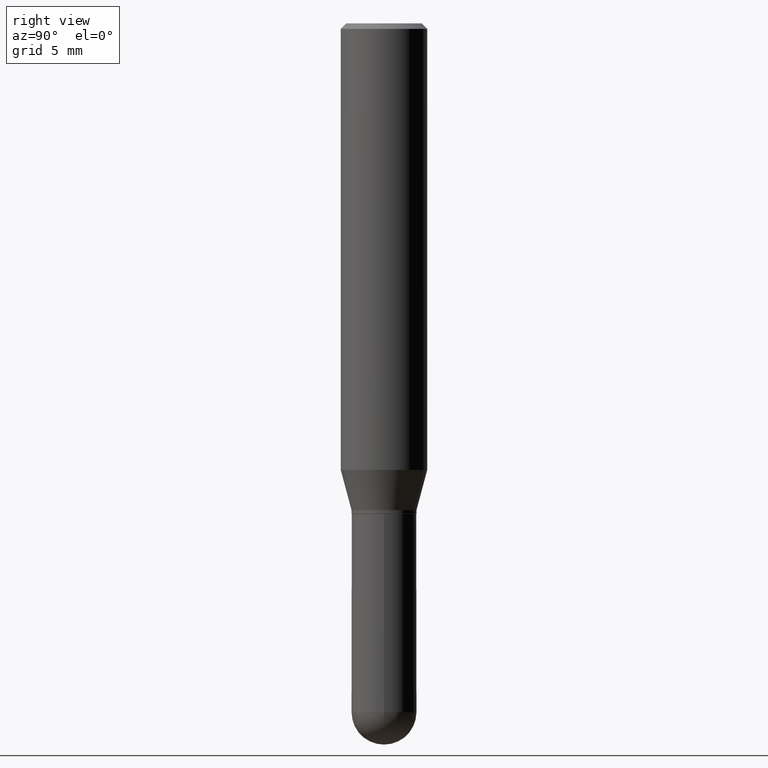
[diagram: clean part render]
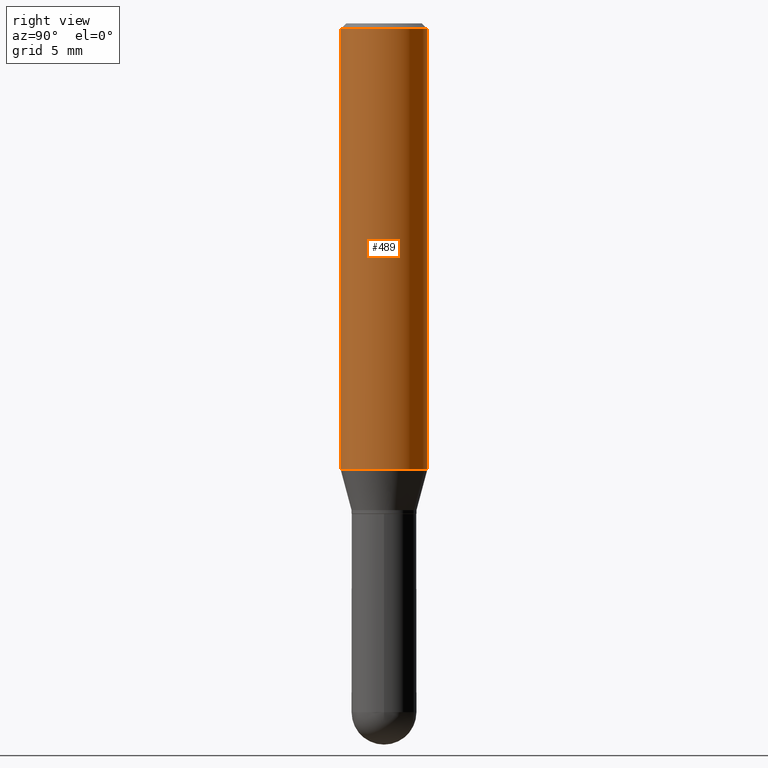
[diagram: same view with one face highlighted and labeled with its STEP entity id]
A machine part, right view. The second image highlights one B-rep face of the part: STEP entity #489.
In plain terms, the highlighted cylindrical surface (partial cylindrical patch) has radius 2.9997 mm, axis along (-0, 0, 1).
Its self-contained STEP definition (entity closure, byte-faithful):
#3 = CARTESIAN_POINT ( 'NONE',  ( -8.246878922347479668E-16, -0.1180999999999999966, 4.122716881796092250E-16 ) ) ;
#33 = DIRECTION ( 'NONE',  ( -2.445896049608158074E-29, 3.490869501944193410E-15, 1.000000000000000000 ) ) ;
#36 = EDGE_CURVE ( 'NONE', #424, #367, #126, .T. ) ;
#39 = DIRECTION ( 'NONE',  ( -2.445896049608158354E-29, 3.490869501944193805E-15, 1.000000000000000000 ) ) ;
#41 = DIRECTION ( 'NONE',  ( -2.445896049608158074E-29, 3.490869501944193410E-15, 1.000000000000000000 ) ) ;
#47 = LINE ( 'NONE', #3, #472 ) ;
#52 = VERTEX_POINT ( 'NONE', #201 ) ;
#62 = EDGE_CURVE ( 'NONE', #52, #343, #47, .T. ) ;
#71 = CARTESIAN_POINT ( 'NONE',  ( 8.391509709327078780E-16, 0.1180999999999957362, -1.218504501176718824 ) ) ;
#83 = AXIS2_PLACEMENT_3D ( 'NONE', #309, #33, #271 ) ;
#125 = FACE_OUTER_BOUND ( 'NONE', #148, .T. ) ;
#126 = LINE ( 'NONE', #324, #272 ) ;
#148 = EDGE_LOOP ( 'NONE', ( #180, #422, #306, #465 ) ) ;
#180 = ORIENTED_EDGE ( 'NONE', *, *, #414, .T. ) ;
#201 = CARTESIAN_POINT ( 'NONE',  ( -8.246878922347182859E-16, -0.1181000000000042710, -1.218504501176718158 ) ) ;
#206 = CARTESIAN_POINT ( 'NONE',  ( 0.000000000000000000, 0.000000000000000000, 0.000000000000000000 ) ) ;
#234 = AXIS2_PLACEMENT_3D ( 'NONE', #510, #41, #502 ) ;
#253 = CARTESIAN_POINT ( 'NONE',  ( 8.391509709327082724E-16, 0.1180999999999999411, -0.01500000000000043833 ) ) ;
#271 = DIRECTION ( 'NONE',  ( -6.982962677686265922E-15, -1.000000000000000000, 3.487819265831411744E-15 ) ) ;
#272 = VECTOR ( 'NONE', #355, 39.37007874015748143 ) ;
#279 = CYLINDRICAL_SURFACE ( 'NONE', #433, 0.1180999999999999966 ) ;
#305 = CIRCLE ( 'NONE', #234, 0.1180999999999999966 ) ;
#306 = ORIENTED_EDGE ( 'NONE', *, *, #447, .F. ) ;
#309 = CARTESIAN_POINT ( 'NONE',  ( 3.668844074412243487E-31, -5.236304252916299458E-17, -0.01500000000000002547 ) ) ;
#322 = DIRECTION ( 'NONE',  ( -2.445896049608158074E-29, 3.490869501944193410E-15, 1.000000000000000000 ) ) ;
#324 = CARTESIAN_POINT ( 'NONE',  ( 8.391509709326781971E-16, 0.1180999999999999966, -4.122716881796092250E-16 ) ) ;
#343 = VERTEX_POINT ( 'NONE', #453 ) ;
#352 = DIRECTION ( 'NONE',  ( -6.982962677686265922E-15, -1.000000000000000000, 3.490869501944193410E-15 ) ) ;
#355 = DIRECTION ( 'NONE',  ( -2.445896049608158354E-29, 3.490869501944193805E-15, 1.000000000000000000 ) ) ;
#367 = VERTEX_POINT ( 'NONE', #253 ) ;
#414 = EDGE_CURVE ( 'NONE', #52, #424, #305, .T. ) ;
#422 = ORIENTED_EDGE ( 'NONE', *, *, #36, .T. ) ;
#423 = CIRCLE ( 'NONE', #83, 0.1180999999999999966 ) ;
#424 = VERTEX_POINT ( 'NONE', #71 ) ;
#433 = AXIS2_PLACEMENT_3D ( 'NONE', #206, #322, #352 ) ;
#447 = EDGE_CURVE ( 'NONE', #343, #367, #423, .T. ) ;
#453 = CARTESIAN_POINT ( 'NONE',  ( -8.246878922347475723E-16, -0.1181000000000000522, -0.01499999999999961434 ) ) ;
#465 = ORIENTED_EDGE ( 'NONE', *, *, #62, .F. ) ;
#472 = VECTOR ( 'NONE', #39, 39.37007874015748143 ) ;
#489 = ADVANCED_FACE ( 'NONE', ( #125 ), #279, .T. ) ;
#502 = DIRECTION ( 'NONE',  ( -6.982962677686265922E-15, -1.000000000000000000, 3.469747663417777397E-15 ) ) ;
#510 = CARTESIAN_POINT ( 'NONE',  ( 2.980335345857895291E-29, -4.253640201139528702E-15, -1.218504501176718602 ) ) ;